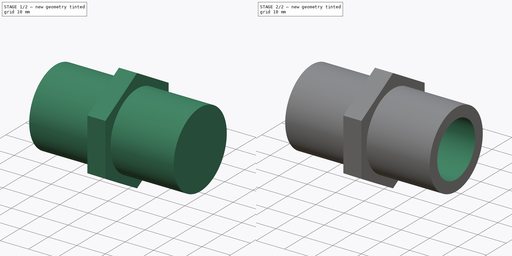
[diagram: build sequence overview — one tinted view per stage of 2, left to right]
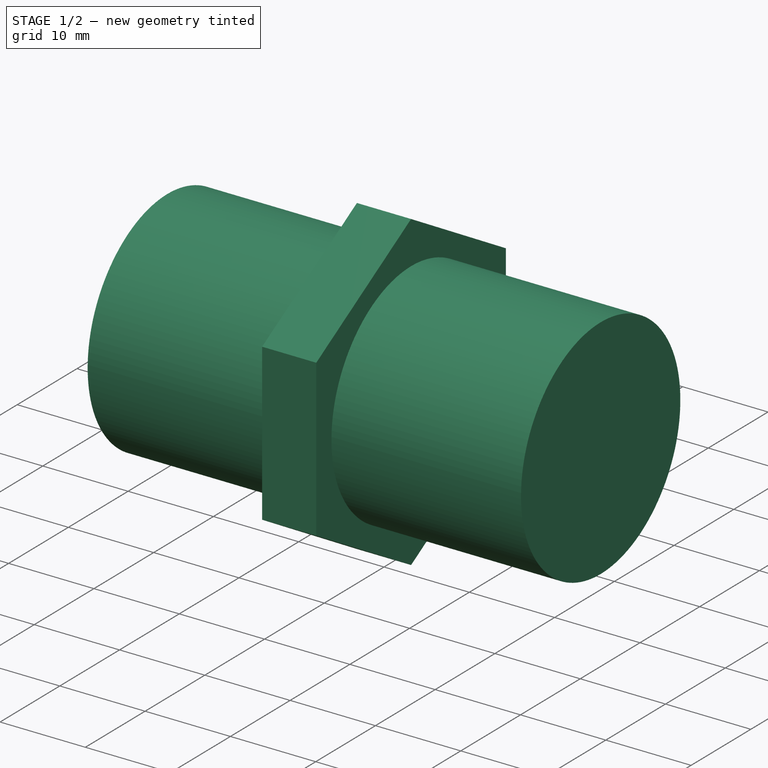
[diagram: stage 1 of 2 — iso view after this stage's code; geometry added in this stage tinted green]
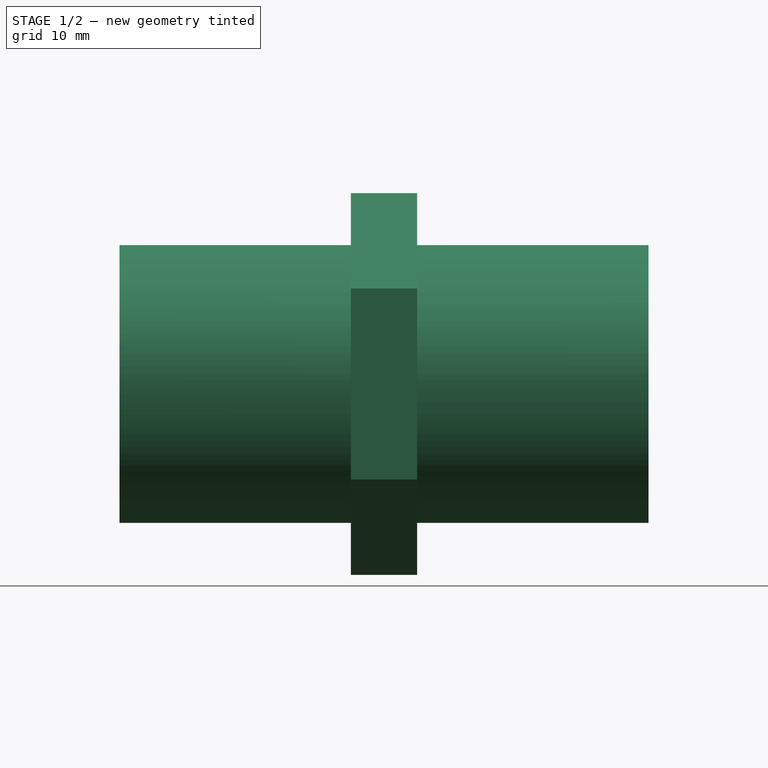
[diagram: stage 1 of 2 — front view after this stage's code; geometry added in this stage tinted green]
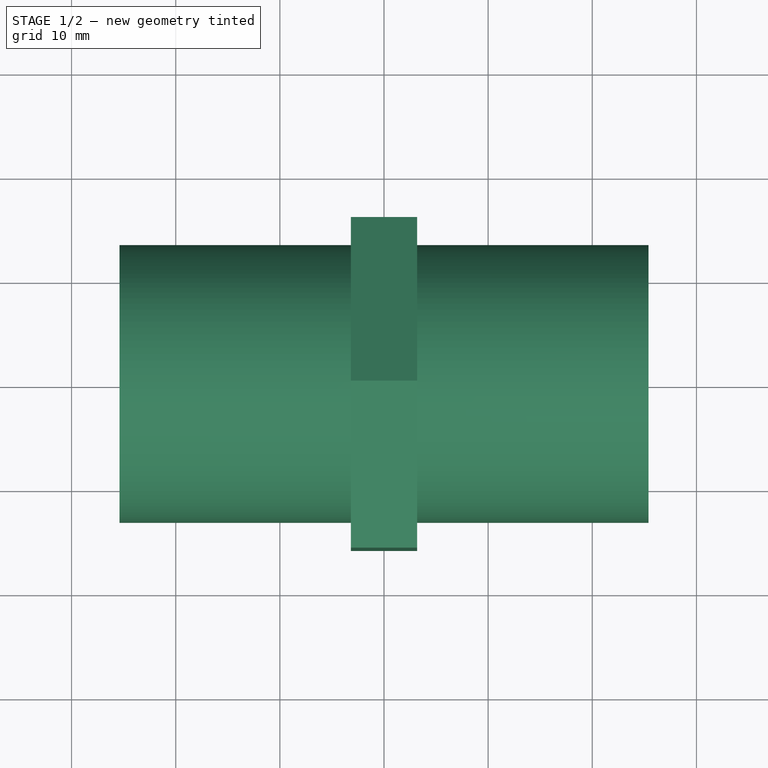
[diagram: stage 1 of 2 — top view after this stage's code; geometry added in this stage tinted green]
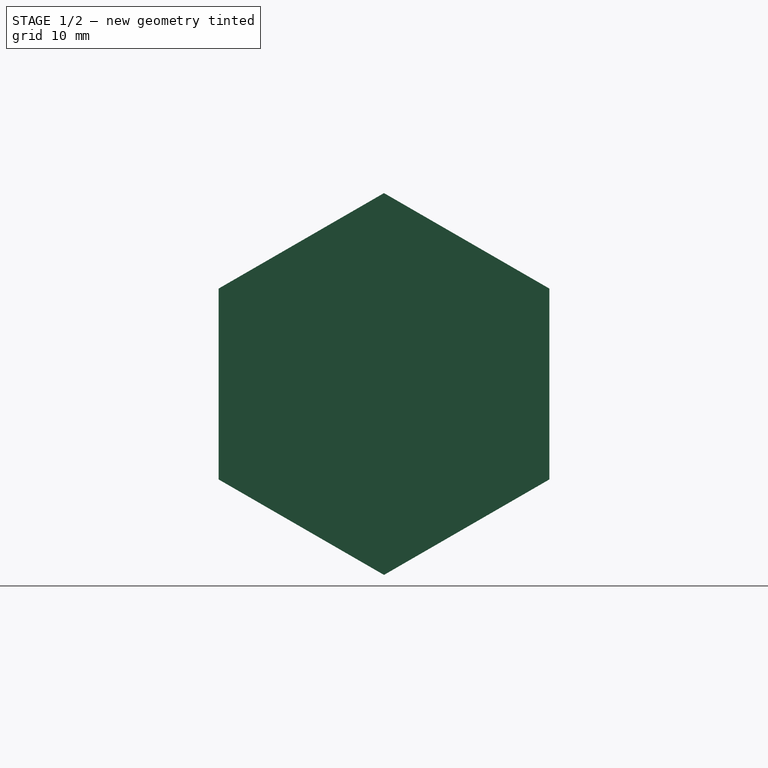
[diagram: stage 1 of 2 — right view after this stage's code; geometry added in this stage tinted green]
FCSTD DOCUMENT  (FreeCAD 0.16R6712 (Git))
Label: 3Quarter_NPT_Hex_Nipple
License: All rights reserved
LicenseURL: http://en.wikipedia.org/wiki/All_rights_reserved
objects: Sketcher::SketchObject×2, Part::Cylinder×1, PartDesign::Pad×1, Part::MultiFuse×1, PartDesign::Pocket×1
note: 8 computed .brp shape members not serialized (recipe doc carries the construction recipe); baked Part::Feature solids carry a one-line shape summary decoded from their .brp

FEATURE [Part::Cylinder] Cylinder
  Angle = 360
  Height = 50.8
  Placement = pos=(-25.4,0,0) rot=(0,1,0;1.5708rad)
  Radius = 13.335
FEATURE [Sketcher::SketchObject] Sketch001
  Placement = pos=(0,0,0) rot=(0.57735,0.57735,0.57735;2.0944rad)
  sketch-geometry (7):
    g0: LineSegment StartX=15.875 StartY=9.16544 StartZ=0 EndX=0 EndY=18.3309 EndZ=0
    g1: LineSegment StartX=0 StartY=18.3309 StartZ=0 EndX=-15.875 EndY=9.16544 EndZ=0
    g2: LineSegment StartX=-15.875 StartY=9.16544 StartZ=0 EndX=-15.875 EndY=-9.16544 EndZ=0
    g3: LineSegment StartX=-15.875 StartY=-9.16544 StartZ=0 EndX=0 EndY=-18.3309 EndZ=0
    g4: LineSegment StartX=0 StartY=-18.3309 StartZ=0 EndX=15.875 EndY=-9.16544 EndZ=0
    g5: LineSegment StartX=15.875 StartY=-9.16544 StartZ=0 EndX=15.875 EndY=9.16544 EndZ=0
    g6: Circle [constr] CenterX=0 CenterY=0 CenterZ=0 NormalX=0 NormalY=0 NormalZ=1 Radius=15.875
  constraints (23):
    c: Coincident(g0,g1)
    c: Coincident(g1,g2)
    c: Coincident(g2,g3)
    c: Coincident(g3,g4)
    c: Coincident(g4,g5)
    c: Coincident(g5,g0)
    c: Equal(g0, g1-g5) x5
    c: Vertical(g5)
    c: Coincident(g6,g-1)
    c: Tangent(g6,g5)
    c: Equal(g1,g2)
    c: Equal(g2,g3)
    c: Equal(g3,g4)
    c: Equal(g4,g5)
    c: Equal(g5,g0)
    c: Tangent(g6,g1)
    c: Tangent(g6,g0)
    c: Tangent(g6,g4)
    c: Tangent(g6,g3)
    c: Tangent(g6,g2)
    c: Angle(g1,g0) = 2.0944
    c: Symmetric(g1,g4,g-1)
    c: Radius(g6) = 15.875  '1-1/4" hex nut'
FEATURE [PartDesign::Pad] Pad
  Length = 6.35
  Length2 = 100
  Midplane = true
  Placement = pos=(0,0,0) rot=(0.57735,0.57735,0.57735;2.0944rad)
  Sketch = -> Sketch001
  Type = 0
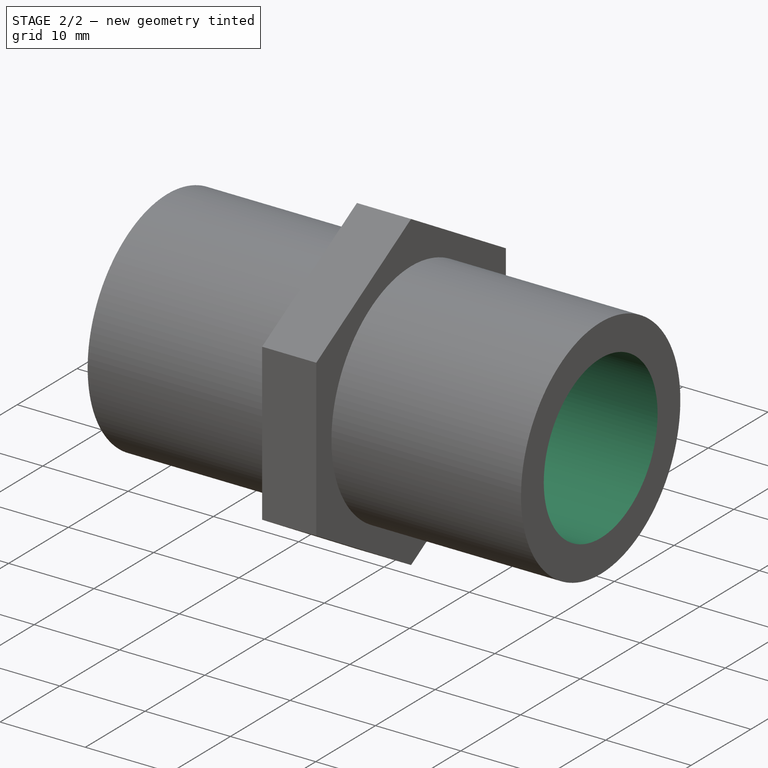
[diagram: stage 2 of 2 — iso view after this stage's code; geometry added in this stage tinted green]
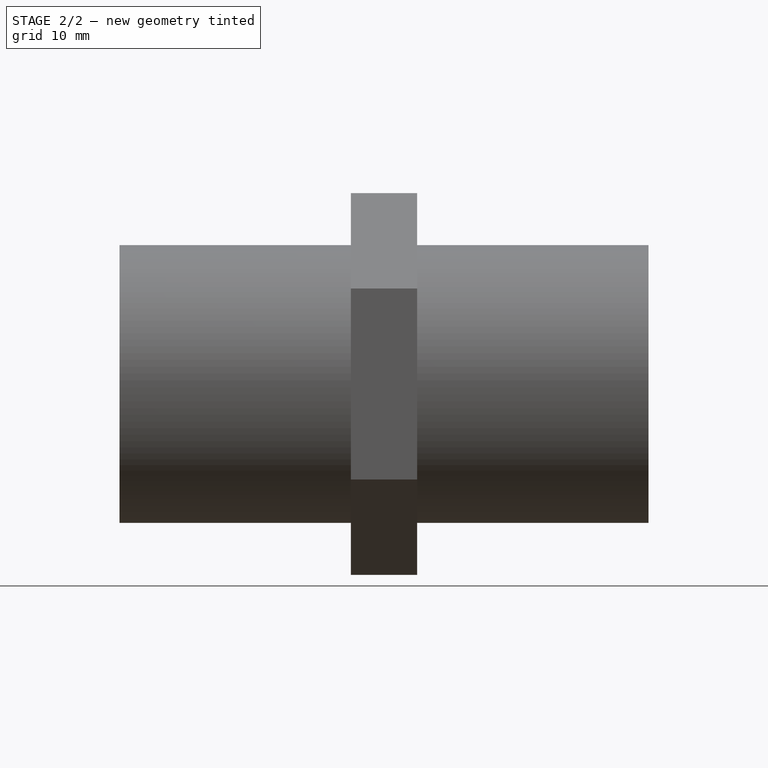
[diagram: stage 2 of 2 — front view after this stage's code; geometry added in this stage tinted green]
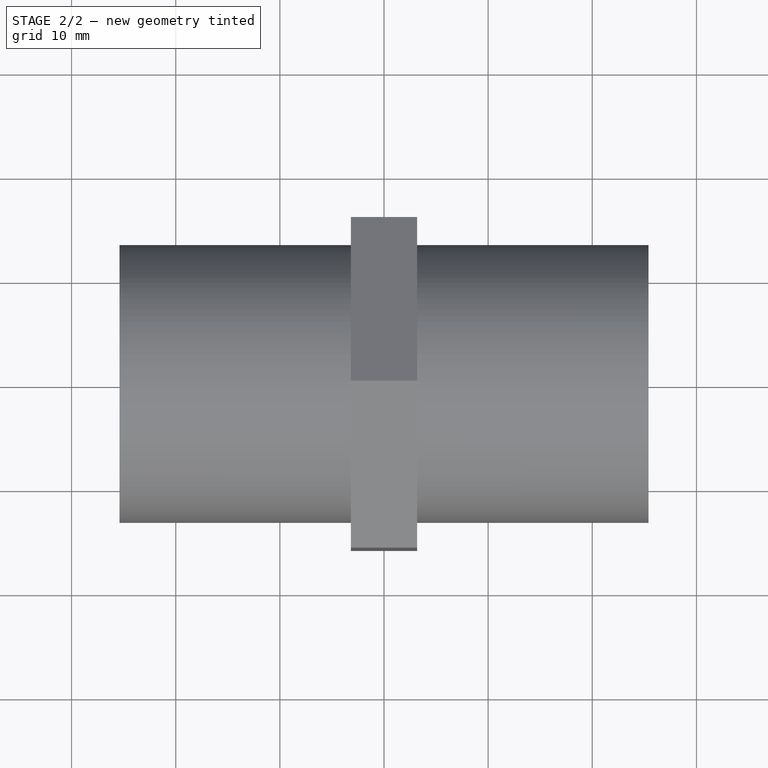
[diagram: stage 2 of 2 — top view after this stage's code; geometry added in this stage tinted green]
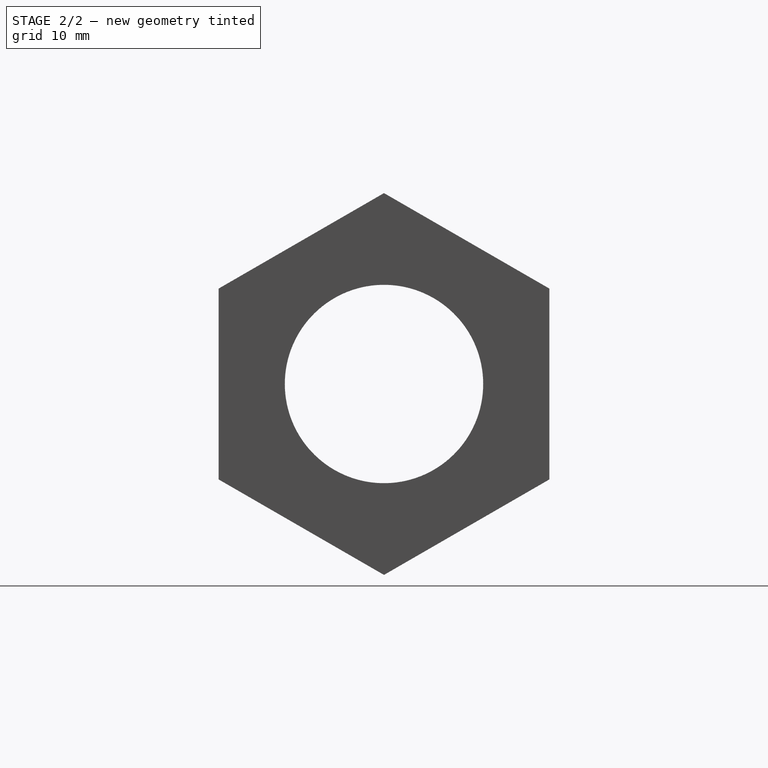
[diagram: stage 2 of 2 — right view after this stage's code; geometry added in this stage tinted green]
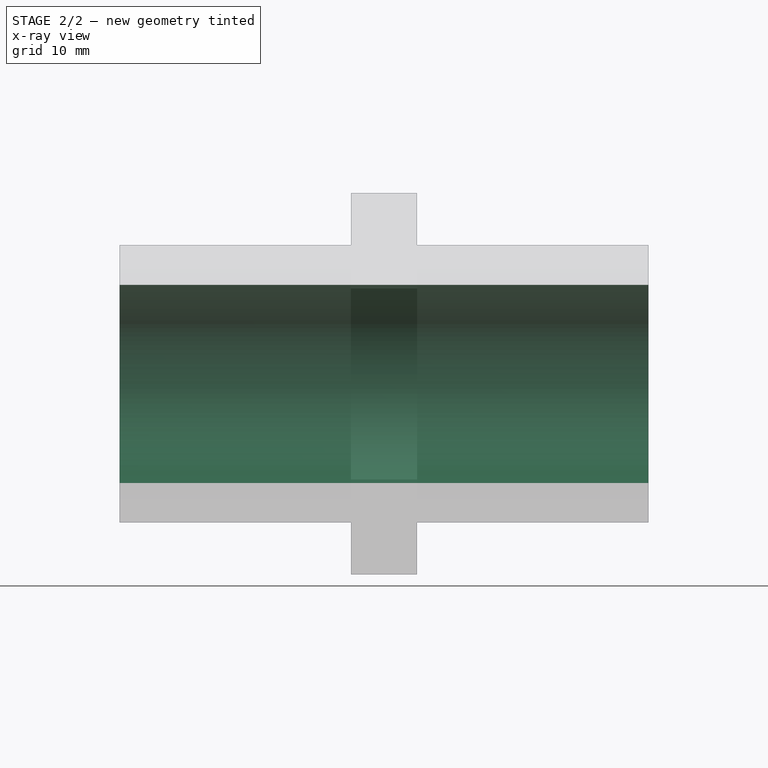
[diagram: stage 2 of 2 — x-ray composite at the front view; earlier geometry ghosted, this stage's added geometry solid]
FEATURE [Part::MultiFuse] Fusion
  Shapes = -> [Cylinder,Pad]
FEATURE [Sketcher::SketchObject] Sketch002
  Placement = pos=(-25.4,0,0) rot=(0.57735,-0.57735,-0.57735;2.0944rad)
  Support = -> Fusion [Face12]
  sketch-geometry (1):
    g0: Circle CenterX=0 CenterY=0 CenterZ=0 NormalX=0 NormalY=0 NormalZ=1 Radius=9.525
  constraints (2):
    c: Coincident(g0,g-1)
    c: Radius(g0) = 9.525
FEATURE [PartDesign::Pocket] Pocket
  Length = 4.99999
  Sketch = -> Sketch002
  Type = 1
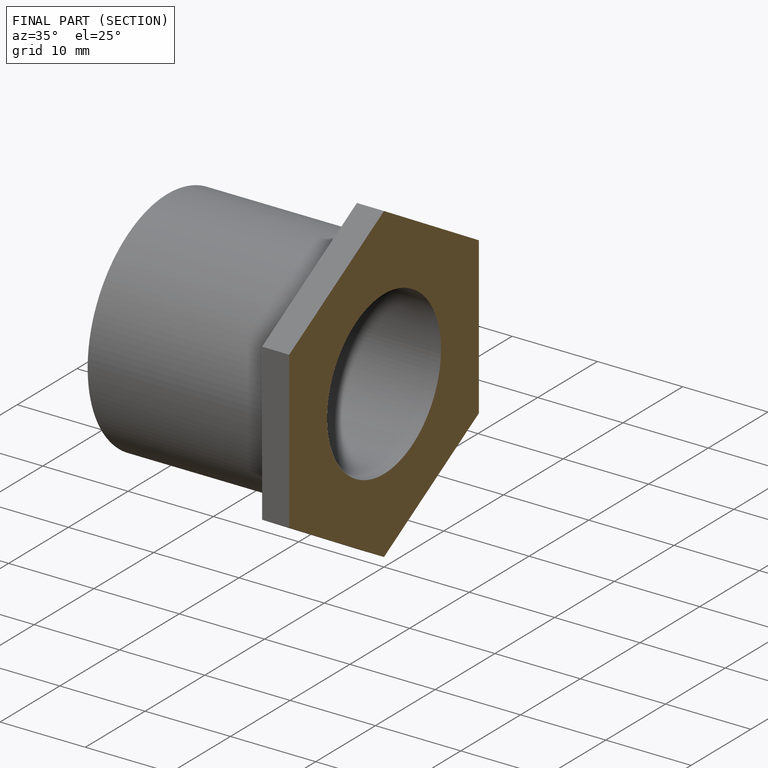
[diagram: finished part — half-section view (interior)]
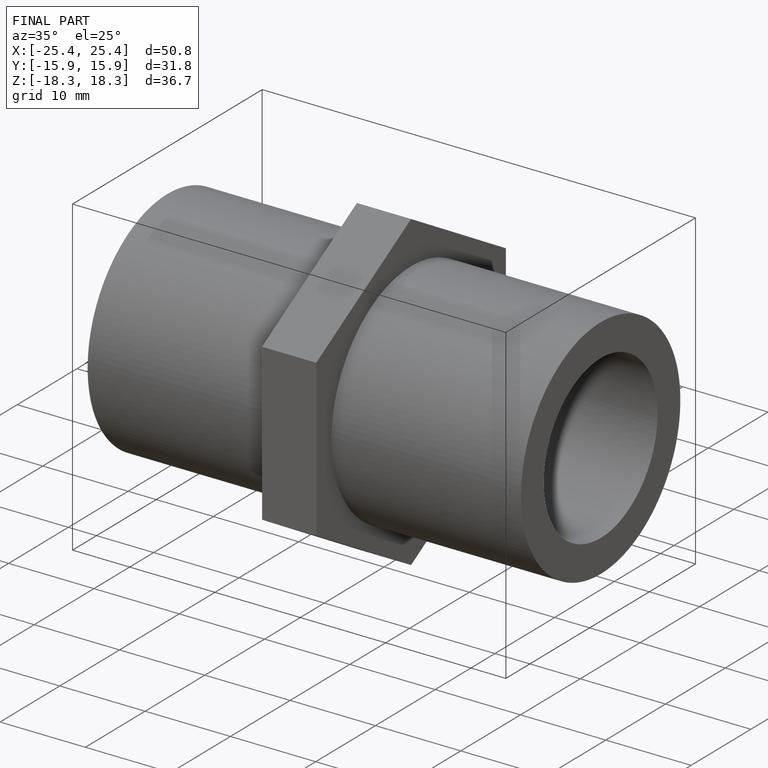
[diagram: finished part — iso view with bounding-box wireframe]
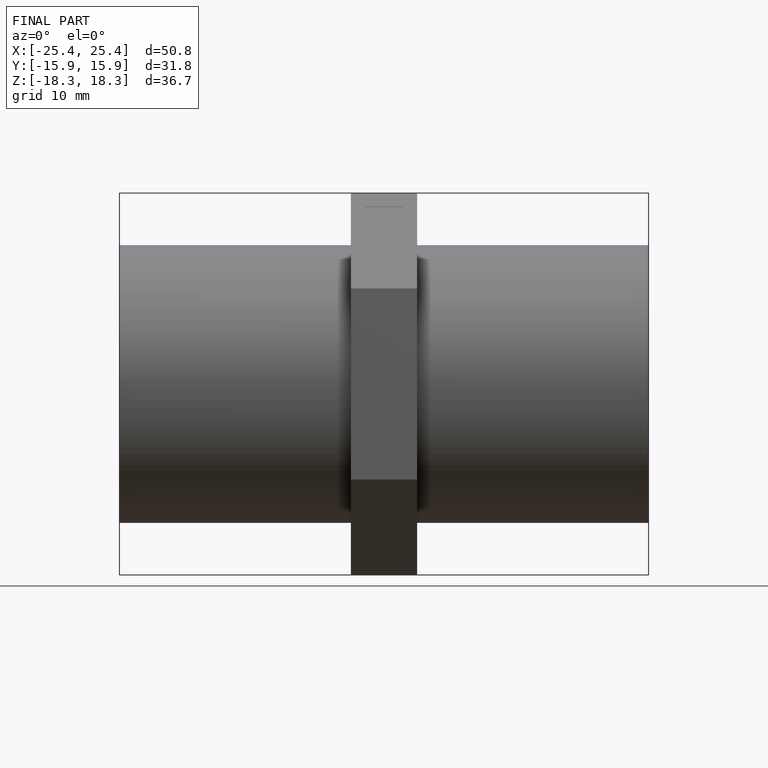
[diagram: finished part — front view with bounding-box wireframe]
